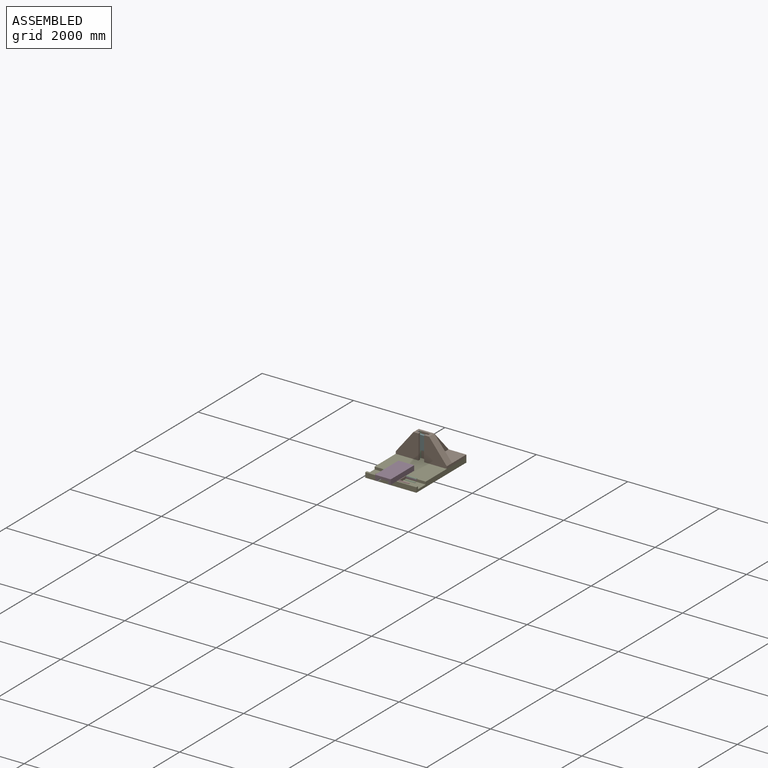
[diagram: assembled view]
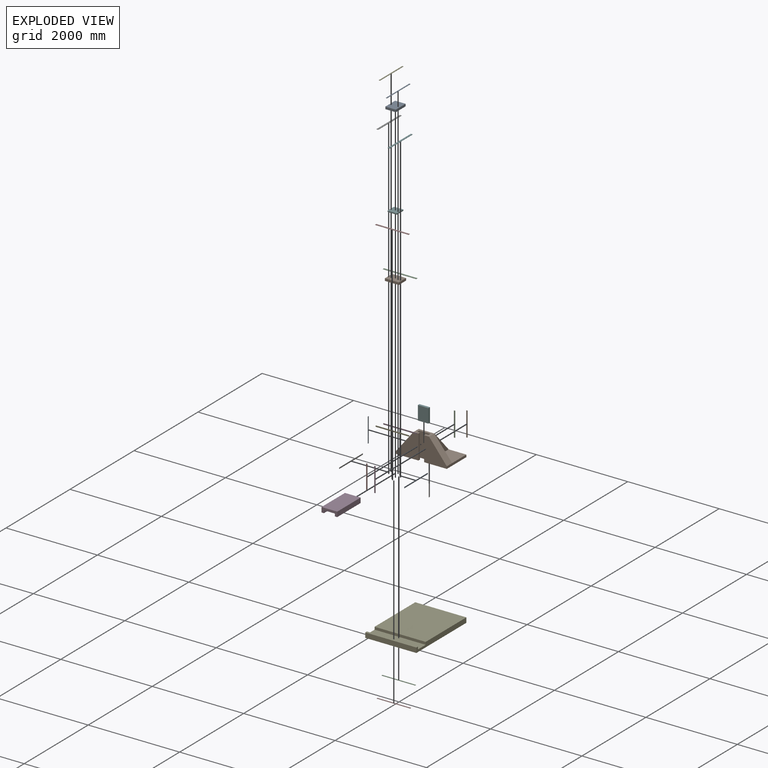
[diagram: exploded view]
GUIDED TOUR — MATED ASSEMBLY (Onshape document 30b760b673738e8e9a17ca54, AutoMate assembly 30b760b673738e8e9a17ca54_6a35988d701757ac89b358a7_d11dbb1e6064b743170af449_default)

This assembly has 25 components, labeled P0..P24 below (a component is one placed occurrence of a part; the same part can appear more than once), held together by 24 mates. A mate is a constraint between two components; its type names the relative motion it leaves free:
  FASTENED — locks the two components together rigidly (no relative motion),
  SLIDER — leaves translation along the listed axis free.
Axis/direction vectors are unit vectors and 'through' points are millimeter coordinates, both in the assembly's world frame.

MATES
  1. FASTENED "Fastened 19": P9 <-> P17, direction (0.000, 1.000, 0.000) through (89.85, 807.77, 216.21) mm
  2. SLIDER "Slider 3": P5 <-> P17, axis (0.000, 0.000, -1.000) through (114.85, 801.42, 285.46) mm
  3. FASTENED "Fastened 15": P6 <-> P17, direction (1.000, 0.000, 0.000) through (121.20, 776.02, 216.21) mm
  4. FASTENED "Fastened 3": P19 <-> P12, direction (0.000, 1.000, 0.000) through (0.55, 33.07, -75.89) mm
  5. FASTENED "Fastened 14": P24 <-> P17, direction (-1.000, 0.000, 0.000) through (-120.10, 776.02, 216.21) mm
  6. FASTENED "Fastened 7": P18 <-> P12, direction (0.000, 0.000, -1.000) through (0.55, 39.42, -50.49) mm
  7. FASTENED "Fastened 1": P12 <-> P23, direction (0.000, 0.000, 1.000) through (0.55, -163.78, -107.64) mm
  8. FASTENED "Fastened 12": P8 <-> P11, direction (1.000, 0.000, 0.000) through (103.61, -114.32, 0.31) mm
  9. FASTENED "Fastened 11": P14 <-> P11, direction (-1.000, 0.000, 0.000) through (-137.69, -114.32, 3.50) mm
  10. FASTENED "Fastened 6": P1 <-> P21, direction (0.000, 0.000, 1.000) through (-17.04, -87.58, -50.49) mm
  11. SLIDER "Slider 1": P1 <-> P12, axis (-1.000, 0.000, 0.000) through (-17.04, -201.88, -101.29) mm
  12. SLIDER "Slider 2": P11 <-> P16, axis (0.000, 1.000, 0.000) through (97.26, -114.32, 25.71) mm
  13. FASTENED "Fastened 9": P11 <-> P0, direction (0.000, 0.000, -1.000) through (59.16, -114.32, 32.06) mm
  14. FASTENED "Fastened 21": P13 <-> P11, direction (0.000, 0.000, 1.000) through (109.96, -114.32, -25.09) mm
  15. FASTENED "Fastened 16": P2 <-> P17, direction (0.000, 1.000, 0.000) through (-88.74, 807.77, 216.21) mm
  16. FASTENED "Fastened 18": P15 <-> P17, direction (0.000, -1.000, 0.000) through (-88.74, 744.27, 216.21) mm
  17. FASTENED "Fastened 5": P7 <-> P12, direction (0.000, 0.000, -1.000) through (0.55, -214.58, -50.49) mm
  18. FASTENED "Fastened 2": P10 <-> P12, direction (0.000, 0.000, -1.000) through (0.55, -11.38, -107.64) mm
  19. FASTENED "Fastened 17": P3 <-> P17, direction (0.000, -1.000, 0.000) through (89.85, 744.27, 216.21) mm
  20. FASTENED "Fastened 8": P16 <-> P21, direction (0.000, 0.000, -1.000) through (-17.04, -87.58, -25.09) mm
  21. FASTENED "Fastened 20": P22 <-> P11, direction (0.000, 0.000, 1.000) through (-144.04, -114.32, -25.09) mm
  22. FASTENED "Fastened 10": P11 <-> P4, direction (0.000, 0.000, -1.000) through (-93.24, -114.32, 32.06) mm
  23. FASTENED "Fastened 13": P12 <-> P17, direction (0.000, 0.000, 1.000) through (508.55, 1252.27, -50.49) mm
  24. FASTENED "Fastened 4": P20 <-> P12, direction (0.000, -1.000, 0.000) through (0.55, -208.23, -75.89) mm

ASSEMBLY ORDER
  1. P17 — the base component [order heuristic]
  2. P2 — core [order heuristic]
  3. P4 [order verified]
  4. P9 — core [order heuristic]
  5. P24 — core [order heuristic]
  6. P3 [order verified]
  7. P15 [order verified]
  8. P0 [order verified]
  9. P11 [order verified]
  10. P20 [order verified]
  11. P19 [order verified]
  12. P5 — core [order heuristic]
  13. P16 [order verified]
  14. P22 [order verified]
  15. P13 [order verified]
  16. P8 [order verified]
  17. P21 [order verified]
  18. P7 [order verified]
  19. P14 [order verified]
  20. P18 [order verified]
  21. P1 [order verified]
  22. P6 [order verified]
  23. P12 [order verified]
  24. P10 [order verified]
  25. P23 [order verified]
(P3, P10, P15, P19, P20, P23 verified with a relaxed clearance tolerance: the source model stores slight part interference there.)
Order-tag legend:
  [order verified] — this step's position reverses a verified removal order: the component was checked to insert without passing through the ones already placed.
  [order heuristic] — the first 5 components form the assembly's core: parts whose collision-free extraction could not be verified, listed in mate-graph order.

Of the 25 components, 25 carry the full construction recipe — the FeatureScript program that regenerates the part's solid from scratch; the rest are supplied as boundary geometry only.
Because this assembly has more than 12 components, the tour below covers the 12 most significant ones individually (every recipe-attached component first, then the largest by part volume), in assembly order; the remaining 13 are summarized together in a grouped section at the end.
Each toured component is shown spotlighted twice — in the assembled view, then in the exploded view, where a leader line traces a displaced component back to its assembled socket (saturated green if recipe-attached, orange if geometry-only; every other component desaturated gray) — followed by its recipe or geometry summary and the mates that hold it.
NOTE — document 2 of 2 of this assembly tour. The two overview renders and the header above are repeated from document 1; the component sections below continue where the previous document stopped.
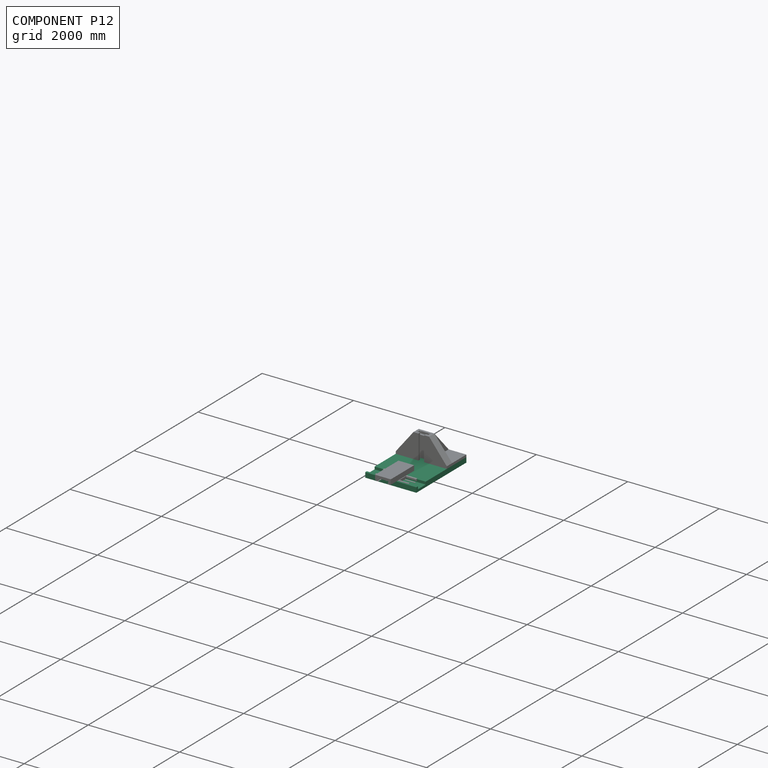
[diagram: component P12 — assembled]
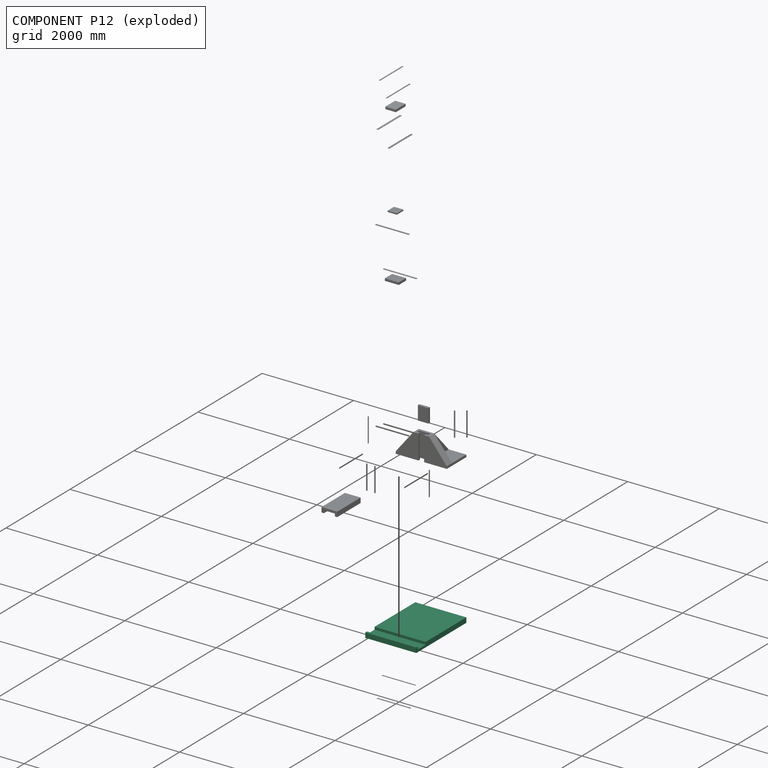
[diagram: component P12 — exploded]
COMPONENT P12 — recipe-attached (CADFS 00977459, mesh-verified: the recipe's output STEP matches this component's geometry to below the mesh-comparison resolution (tessellation chordal tolerance ~2.89 mm)).
Held by: FASTENED mate "Fastened 3" to P19; FASTENED mate "Fastened 7" to P18; FASTENED mate "Fastened 1" to P23; SLIDER mate "Slider 1" to P1; FASTENED mate "Fastened 5" to P7; FASTENED mate "Fastened 2" to P10; FASTENED mate "Fastened 13" to P17; FASTENED mate "Fastened 4" to P20.
Construction recipe (FeatureScript — the CAD program that rebuilds this solid; sketch coordinates are in the units given by the * unit suffixes, e.g. mm):

FeatureScript 1511;
import(path : "onshape/std/geometry.fs", version : "1511.0");
import(path : "onshape/std/common.fs", version : "1511.0");
const mm = millimeter;
const VERTEX = EntityType.VERTEX;
const EDGE = EntityType.EDGE;
const FACE = EntityType.FACE;
const BODY = EntityType.BODY;
function v(x, y){return vector(x, y);}
function OD(order){return orderDisambiguation(order);}
function OSD(set){return originalSetDisambiguation(set);}
function TD(topology){return topologyDisambiguation(topology);}
function TDD(query){return trueDependencyDisambiguation(query);}
function sQuery(a, b, c) {return sketchEntityQuery(a, b, c);}

annotation { "Feature Type Name" : "Feature", "Feature Type Description" : "" }
export const myFeature = defineFeature(function(context is Context, id is Id, definition is map)
    precondition{}
    {
        {
            var Q0;
            Q0=qCreatedBy(makeId("Right.planeOp"),FACE);
            var sketch = newSketch(context, id + "F0", { "sketchPlane" : qUnion([Q0])});
            skLineSegment(sketch, "E0", {"start": v(-171.45, 0) * mm, "end": v(1390.65, 0) * mm});
            skLineSegment(sketch, "E1", {"start": v(1390.65, 0) * mm, "end": v(1390.65, 107.95) * mm});
            skLineSegment(sketch, "E2", {"start": v(-171.45, 0) * mm, "end": v(-171.45, 107.95) * mm});
            skLineSegment(sketch, "E3", {"start": v(-171.45, 107.95) * mm, "end": v(-120.65, 107.95) * mm});
            skLineSegment(sketch, "E4", {"start": v(-120.65, 107.95) * mm, "end": v(-120.65, 50.8) * mm});
            skLineSegment(sketch, "E5", {"start": v(-120.65, 50.8) * mm, "end": v(120.65, 50.8) * mm});
            skLineSegment(sketch, "E6", {"start": v(120.65, 50.8) * mm, "end": v(120.65, 107.95) * mm});
            skLineSegment(sketch, "E7", {"start": v(120.65, 107.95) * mm, "end": v(1390.65, 107.95) * mm});
            skPoint(sketch, "E8", {"position": v(0, 50.8) * mm});
            skLineSegment(sketch, "E9.bottom", {"start": v(-120.65, 50.8) * mm, "end": v(-114.3, 50.8) * mm});
            skLineSegment(sketch, "E9.top", {"start": v(-120.65, 57.15) * mm, "end": v(-114.3, 57.15) * mm});
            skLineSegment(sketch, "E9.left", {"start": v(-120.65, 50.8) * mm, "end": v(-120.65, 57.15) * mm});
            skLineSegment(sketch, "E9.right", {"start": v(-114.3, 50.8) * mm, "end": v(-114.3, 57.15) * mm});
            skSolve(sketch);
        }
        {
            var Q0;
            Q0=qSketchRegion(id+"F0",true);
            extrude(context, id + "F1", {"entities" : qUnion([Q0]), "endBound" : BoundingType.SYMMETRIC, "depth" : 1117.6 * mm, "offsetDistance" : 25.4 * mm});
        }
        {
            var Q0;
            Q0=makeQuery(id+"F1.opExtrude","SWEPT_FACE",FACE,{"disambiguationData":[OSD([sQuery(id+"F0.wireOp",EDGE,"E5")])]});
            var sketch = newSketch(context, id + "F2", { "sketchPlane" : qUnion([Q0])});
            skCircle(sketch, "E10", {"center": v(170.18, -76.2) * mm, "radius": 3.18 * mm});
            skCircle(sketch, "E11", {"center": v(0, -76.2) * mm, "radius": 3.18 * mm});
            skCircle(sketch, "E12", {"center": v(-170.18, -76.2) * mm, "radius": 3.18 * mm});
            skCircle(sketch, "E13.MirrorC", {"center": v(0, 76.2) * mm, "radius": 3.18 * mm});
            skCircle(sketch, "E14.MirrorC", {"center": v(-170.18, 76.2) * mm, "radius": 3.18 * mm});
            skCircle(sketch, "E15.MirrorC", {"center": v(170.18, 76.2) * mm, "radius": 3.18 * mm});
            skCircle(sketch, "E16", {"center": v(-340.36, -76.2) * mm, "radius": 3.18 * mm});
            skCircle(sketch, "E17.MirrorC", {"center": v(340.36, -76.2) * mm, "radius": 3.18 * mm});
            skCircle(sketch, "E18.MirrorC", {"center": v(-340.36, 76.2) * mm, "radius": 3.18 * mm});
            skCircle(sketch, "E19.MirrorC", {"center": v(340.36, 76.2) * mm, "radius": 3.18 * mm});
            skSolve(sketch);
        }
        {
            var Q0;
            Q0=qSketchRegion(id+"F2",true);
            extrude(context, id + "F3", {"entities" : qUnion([Q0]), "operationType" : NewBodyOperationType.REMOVE, "oppositeDirection" : true, "depth" : 25.4 * mm, "offsetDistance" : 25.4 * mm});
        }
        {
            var Q0;
            Q0=makeQuery(id+"F1.opExtrude","SWEPT_FACE",FACE,{"disambiguationData":[OSD([sQuery(id+"F0.wireOp",EDGE,"E6")])]});
            var sketch = newSketch(context, id + "F4", { "sketchPlane" : qUnion([Q0])});
            skCircle(sketch, "E20", {"center": v(0, 82.55) * mm, "radius": 3.18 * mm});
            skCircle(sketch, "E21", {"center": v(-170.18, 82.55) * mm, "radius": 3.18 * mm});
            skCircle(sketch, "E22", {"center": v(-340.36, 82.55) * mm, "radius": 3.18 * mm});
            skCircle(sketch, "E23.MirrorC", {"center": v(170.18, 82.55) * mm, "radius": 3.18 * mm});
            skCircle(sketch, "E24.MirrorC", {"center": v(340.36, 82.55) * mm, "radius": 3.18 * mm});
            skSolve(sketch);
        }
        {
            var Q0;
            Q0=qSketchRegion(id+"F4",true);
            extrude(context, id + "F5", {"entities" : qUnion([Q0]), "operationType" : NewBodyOperationType.REMOVE, "oppositeDirection" : true, "depth" : 25.4 * mm, "offsetDistance" : 25.4 * mm});
        }
        {
            var Q0;
            Q0=makeQuery(id+"F1.opExtrude","SWEPT_FACE",FACE,{"disambiguationData":[OSD([sQuery(id+"F0.wireOp",EDGE,"E4")])]});
            var sketch = newSketch(context, id + "F6", { "sketchPlane" : qUnion([Q0])});
            skCircle(sketch, "E25", {"center": v(0, 82.55) * mm, "radius": 3.18 * mm});
            skCircle(sketch, "E26", {"center": v(-170.18, 82.55) * mm, "radius": 3.18 * mm});
            skCircle(sketch, "E27", {"center": v(-340.36, 82.55) * mm, "radius": 3.18 * mm});
            skCircle(sketch, "E28.MirrorC", {"center": v(170.18, 82.55) * mm, "radius": 3.18 * mm});
            skCircle(sketch, "E29.MirrorC", {"center": v(340.36, 82.55) * mm, "radius": 3.18 * mm});
            skSolve(sketch);
        }
        {
            var Q0;
            Q0=qSketchRegion(id+"F6",true);
            extrude(context, id + "F7", {"entities" : qUnion([Q0]), "operationType" : NewBodyOperationType.REMOVE, "oppositeDirection" : true, "depth" : 25.4 * mm, "offsetDistance" : 25.4 * mm});
        }
        {
            var Q0;
            Q0=makeQuery(id+"F1.opExtrude","SWEPT_FACE",FACE,{"disambiguationData":[OSD([sQuery(id+"F0.wireOp",EDGE,"E3")])]});
            var sketch = newSketch(context, id + "F8", { "sketchPlane" : qUnion([Q0])});
            skCircle(sketch, "E30", {"center": v(0, -127) * mm, "radius": 3.18 * mm});
            skPoint(sketch, "E30.centerSnap0", {"position": v(0, -120.65) * mm});
            skCircle(sketch, "E31", {"center": v(-340.36, -127) * mm, "radius": 3.18 * mm});
            skCircle(sketch, "E32", {"center": v(-170.18, -133.35) * mm, "radius": 3.17 * mm});
            skCircle(sketch, "E33.MirrorC", {"center": v(170.18, -133.35) * mm, "radius": 3.17 * mm});
            skCircle(sketch, "E34.MirrorC", {"center": v(340.36, -127) * mm, "radius": 3.18 * mm});
            skCircle(sketch, "E35.MirrorC", {"center": v(-340.36, 127) * mm, "radius": 3.18 * mm});
            skCircle(sketch, "E36.MirrorC", {"center": v(-170.18, 133.35) * mm, "radius": 3.17 * mm});
            skCircle(sketch, "E37.MirrorC", {"center": v(0, 127) * mm, "radius": 3.18 * mm});
            skCircle(sketch, "E38.MirrorC", {"center": v(170.18, 133.35) * mm, "radius": 3.17 * mm});
            skCircle(sketch, "E39.MirrorC", {"center": v(340.36, 127) * mm, "radius": 3.18 * mm});
            skSolve(sketch);
        }
        {
            var Q0;
            Q0=qSketchRegion(id+"F8",true);
            extrude(context, id + "F9", {"entities" : qUnion([Q0]), "operationType" : NewBodyOperationType.REMOVE, "oppositeDirection" : true, "depth" : 25.4 * mm, "offsetDistance" : 25.4 * mm});
        }
        {
            var Q0;
            Q0=makeQuery(id+"F1.opExtrude","SWEPT_FACE",FACE,{"disambiguationData":[OSD([sQuery(id+"F0.wireOp",EDGE,"E7")])]});
            var sketch = newSketch(context, id + "F10", { "sketchPlane" : qUnion([Q0])});
            skCircle(sketch, "E40", {"center": v(508, 1339.85) * mm, "radius": 6.35 * mm});
            skCircle(sketch, "E41", {"center": v(-508, 1339.85) * mm, "radius": 6.35 * mm});
            skSolve(sketch);
        }
        {
            var Q0;
            Q0 = qSketchRegion(id + "F10", true);
            extrude(context, id + "F11", {"entities" : qUnion([Q0]), "operationType" : NewBodyOperationType.REMOVE, "oppositeDirection" : true, "depth" : 25.4 * mm, "offsetDistance" : 25.4 * mm});
        }
    });
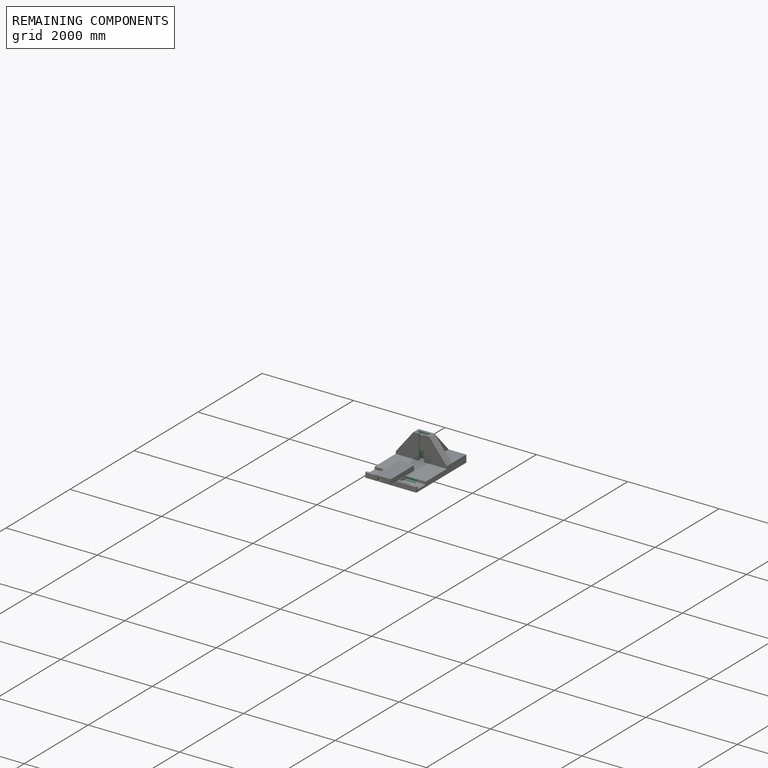
[diagram: remaining components — assembled]
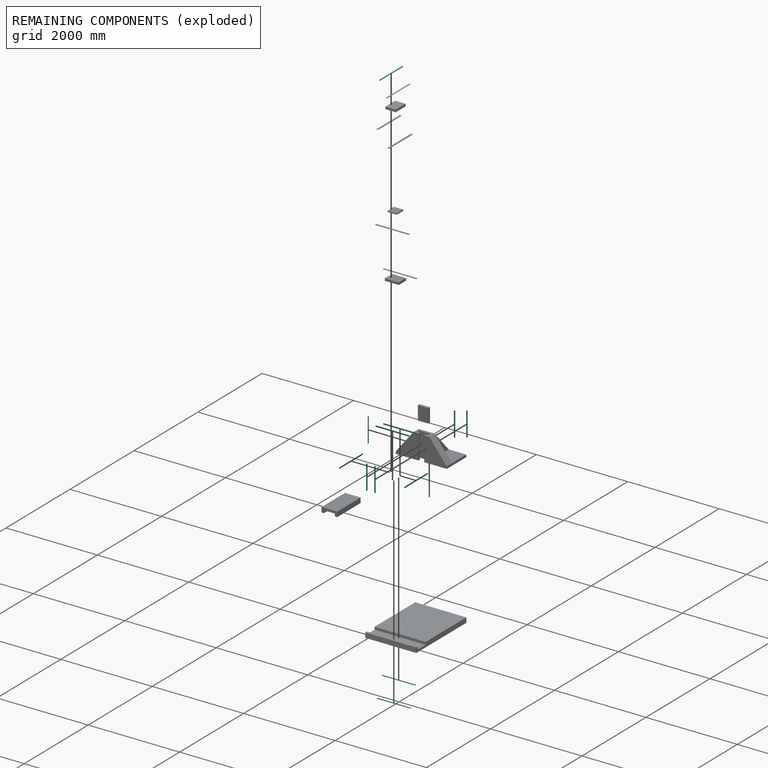
[diagram: remaining components — exploded]
REMAINING COMPONENTS (grouped) — the 13 components below fall outside the per-component tour by the significance rule stated above; both spotlight views highlight the whole group.
  P2: bounding box 533.4 x 25.4 x 6.4 mm, volume 85027 mm^3. Recipe-attached (CADFS 00977462; recipe not printed under the significance rule). Held by: FASTENED mate "Fastened 16" to P17.
  P4: bounding box 731.5 x 25.4 x 6.4 mm, volume 116981 mm^3. Recipe-attached (CADFS 00977455; recipe not printed under the significance rule). Held by: FASTENED mate "Fastened 10" to P11.
  P9: bounding box 533.4 x 25.4 x 6.4 mm, volume 85027 mm^3. Recipe-attached (CADFS 00977462; recipe not printed under the significance rule). Held by: FASTENED mate "Fastened 19" to P17.
  P24: bounding box 533.4 x 25.4 x 6.4 mm, volume 85027 mm^3. Recipe-attached (CADFS 00977462; recipe not printed under the significance rule). Held by: FASTENED mate "Fastened 14" to P17.
  P3: bounding box 533.4 x 25.4 x 6.4 mm, volume 85027 mm^3. Recipe-attached (CADFS 00977462; recipe not printed under the significance rule). Held by: FASTENED mate "Fastened 17" to P17.
  P15: bounding box 533.4 x 25.4 x 6.4 mm, volume 85027 mm^3. Recipe-attached (CADFS 00977462; recipe not printed under the significance rule). Held by: FASTENED mate "Fastened 18" to P17.
  P20: bounding box 731.5 x 25.4 x 6.4 mm, volume 116981 mm^3. Recipe-attached (CADFS 00977455; recipe not printed under the significance rule). Held by: FASTENED mate "Fastened 4" to P12.
  P19: bounding box 731.5 x 25.4 x 6.4 mm, volume 116981 mm^3. Recipe-attached (CADFS 00977455; recipe not printed under the significance rule). Held by: FASTENED mate "Fastened 3" to P12.
  P8: bounding box 731.5 x 25.4 x 6.4 mm, volume 116981 mm^3. Recipe-attached (CADFS 00977455; recipe not printed under the significance rule). Held by: FASTENED mate "Fastened 12" to P11.
  P14: bounding box 731.5 x 25.4 x 6.4 mm, volume 116981 mm^3. Recipe-attached (CADFS 00977455; recipe not printed under the significance rule). Held by: FASTENED mate "Fastened 11" to P11.
  P6: bounding box 533.4 x 25.4 x 6.4 mm, volume 85027 mm^3. Recipe-attached (CADFS 00977462; recipe not printed under the significance rule). Held by: FASTENED mate "Fastened 15" to P17.
  P10: bounding box 731.5 x 25.4 x 6.4 mm, volume 116981 mm^3. Recipe-attached (CADFS 00977455; recipe not printed under the significance rule). Held by: FASTENED mate "Fastened 2" to P12.
  P23: bounding box 731.5 x 25.4 x 6.4 mm, volume 116981 mm^3. Recipe-attached (CADFS 00977455; recipe not printed under the significance rule). Held by: FASTENED mate "Fastened 1" to P12.
PROVENANCE & LICENSES
Assembly (occurrences, transforms, mates, per-part STEP geometry): AutoMate dataset, Zenodo record 7776208, CC0.
Construction recipes: CADFS (HuggingFace VladPyatov/CADFS, CC-BY-4.0, layered over the ABC dataset), FeatureScript reconstruction programs keyed by ABC model id.
Join: ABC meta listings map ABC model id -> Onshape documentId; within a shared document, parts are matched by geometric signature (bounding-box dims + volume at 0.1% relative tolerance, exact B-rep face/solid counts).
Verification: 25 of this assembly's 25 components carry a recipe attachment, and every attachment is mesh-verified: the CADFS STEP and the AutoMate member STEP were compared as meshes in their shared local frame (symmetric sampled-point-to-mesh distance); worst across the 25 attachments: below the mesh-comparison resolution (tessellation chordal tolerance ~2.89 mm) on a 1924 mm part.
Renders: orthographic iso camera (az 35 / el 25); the floor grid conveys scale (grid pitch printed in each image; no ruler). In the exploded view each component is displaced by its stored offset vector: the offsets alone carry the explosion direction (mate normal/axis signs are not orientation cues and do not encode it), and separation distances are assigned per mate-chain, not proportionally to assembly-order depth.
